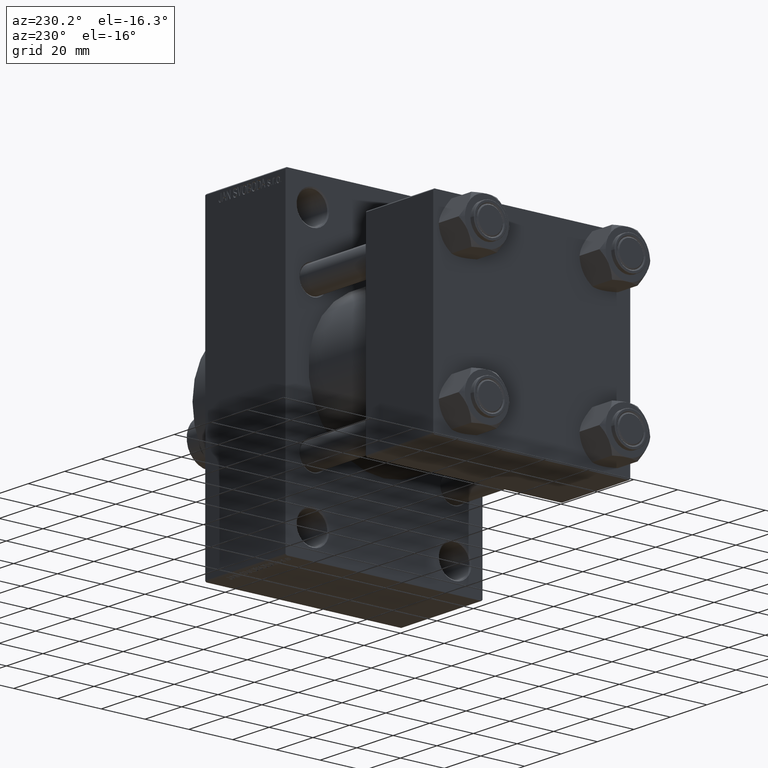
[diagram: clean part render]
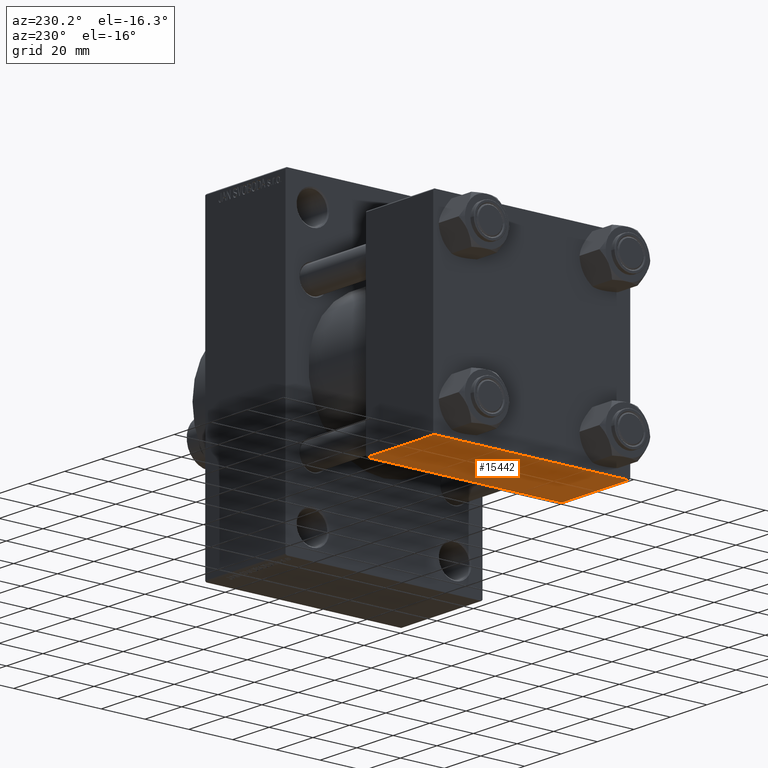
[diagram: same view with one face highlighted and labeled with its STEP entity id]
A machine part, auxiliary view. The second image highlights one B-rep face of the part: STEP entity #15442.
In plain terms, the highlighted planar face has unit normal (0, 0, -1).
Its self-contained STEP definition (entity closure, byte-faithful):
#1463 = ORIENTED_EDGE ( 'NONE', *, *, #28003, .T. ) ;
#1593 = DIRECTION ( 'NONE',  ( -1.000000000000000000, 0.000000000000000000, 0.000000000000000000 ) ) ;
#1765 = AXIS2_PLACEMENT_3D ( 'NONE', #33450, #45188, #12891 ) ;
#4421 = LINE ( 'NONE', #11654, #31612 ) ;
#5221 = VERTEX_POINT ( 'NONE', #16702 ) ;
#6532 = VERTEX_POINT ( 'NONE', #16668 ) ;
#6966 = FACE_OUTER_BOUND ( 'NONE', #17077, .T. ) ;
#7347 = EDGE_CURVE ( 'NONE', #43392, #5221, #4421, .T. ) ;
#8559 = LINE ( 'NONE', #23255, #26741 ) ;
#10215 = DIRECTION ( 'NONE',  ( 0.000000000000000000, -1.000000000000000000, -1.541976423090495633E-16 ) ) ;
#11654 = CARTESIAN_POINT ( 'NONE',  ( 0.000000000000000000, 44.99999999999998579, -44.99999999999998579 ) ) ;
#12281 = ORIENTED_EDGE ( 'NONE', *, *, #41667, .T. ) ;
#12891 = DIRECTION ( 'NONE',  ( 0.000000000000000000, 1.000000000000000000, 1.541976423090495880E-16 ) ) ;
#14720 = VERTEX_POINT ( 'NONE', #41087 ) ;
#14800 = ORIENTED_EDGE ( 'NONE', *, *, #36547, .T. ) ;
#15442 = ADVANCED_FACE ( 'NONE', ( #6966 ), #40693, .T. ) ;
#15495 = DIRECTION ( 'NONE',  ( 0.000000000000000000, -1.000000000000000000, -1.541976423090495633E-16 ) ) ;
#16668 = CARTESIAN_POINT ( 'NONE',  ( 37.00000000000000000, -44.49999999999995737, -45.00000000000000000 ) ) ;
#16702 = CARTESIAN_POINT ( 'NONE',  ( 0.000000000000000000, -44.49999999999995737, -45.00000000000000000 ) ) ;
#17077 = EDGE_LOOP ( 'NONE', ( #45697, #14800, #12281, #1463 ) ) ;
#19754 = CARTESIAN_POINT ( 'NONE',  ( 0.000000000000000000, 44.49999999999998579, -44.99999999999998579 ) ) ;
#23255 = CARTESIAN_POINT ( 'NONE',  ( 37.00000000000000000, 44.49999999999998579, -44.99999999999998579 ) ) ;
#26741 = VECTOR ( 'NONE', #30233, 1000.000000000000000 ) ;
#27380 = LINE ( 'NONE', #30743, #28880 ) ;
#28003 = EDGE_CURVE ( 'NONE', #6532, #5221, #27380, .T. ) ;
#28880 = VECTOR ( 'NONE', #1593, 1000.000000000000000 ) ;
#30233 = DIRECTION ( 'NONE',  ( 1.000000000000000000, 0.000000000000000000, 0.000000000000000000 ) ) ;
#30743 = CARTESIAN_POINT ( 'NONE',  ( 0.000000000000000000, -44.49999999999998579, -45.00000000000000000 ) ) ;
#31612 = VECTOR ( 'NONE', #15495, 1000.000000000000000 ) ;
#33256 = LINE ( 'NONE', #43209, #38448 ) ;
#33450 = CARTESIAN_POINT ( 'NONE',  ( 37.00000000000000000, 44.99999999999998579, -44.99999999999998579 ) ) ;
#36547 = EDGE_CURVE ( 'NONE', #43392, #14720, #8559, .T. ) ;
#38448 = VECTOR ( 'NONE', #10215, 1000.000000000000000 ) ;
#40693 = PLANE ( 'NONE',  #1765 ) ;
#41087 = CARTESIAN_POINT ( 'NONE',  ( 37.00000000000000000, 44.49999999999998579, -44.99999999999998579 ) ) ;
#41667 = EDGE_CURVE ( 'NONE', #14720, #6532, #33256, .T. ) ;
#43209 = CARTESIAN_POINT ( 'NONE',  ( 37.00000000000000000, 44.99999999999998579, -44.99999999999998579 ) ) ;
#43392 = VERTEX_POINT ( 'NONE', #19754 ) ;
#45188 = DIRECTION ( 'NONE',  ( 0.000000000000000000, 1.541976423090495880E-16, -1.000000000000000000 ) ) ;
#45697 = ORIENTED_EDGE ( 'NONE', *, *, #7347, .F. ) ;